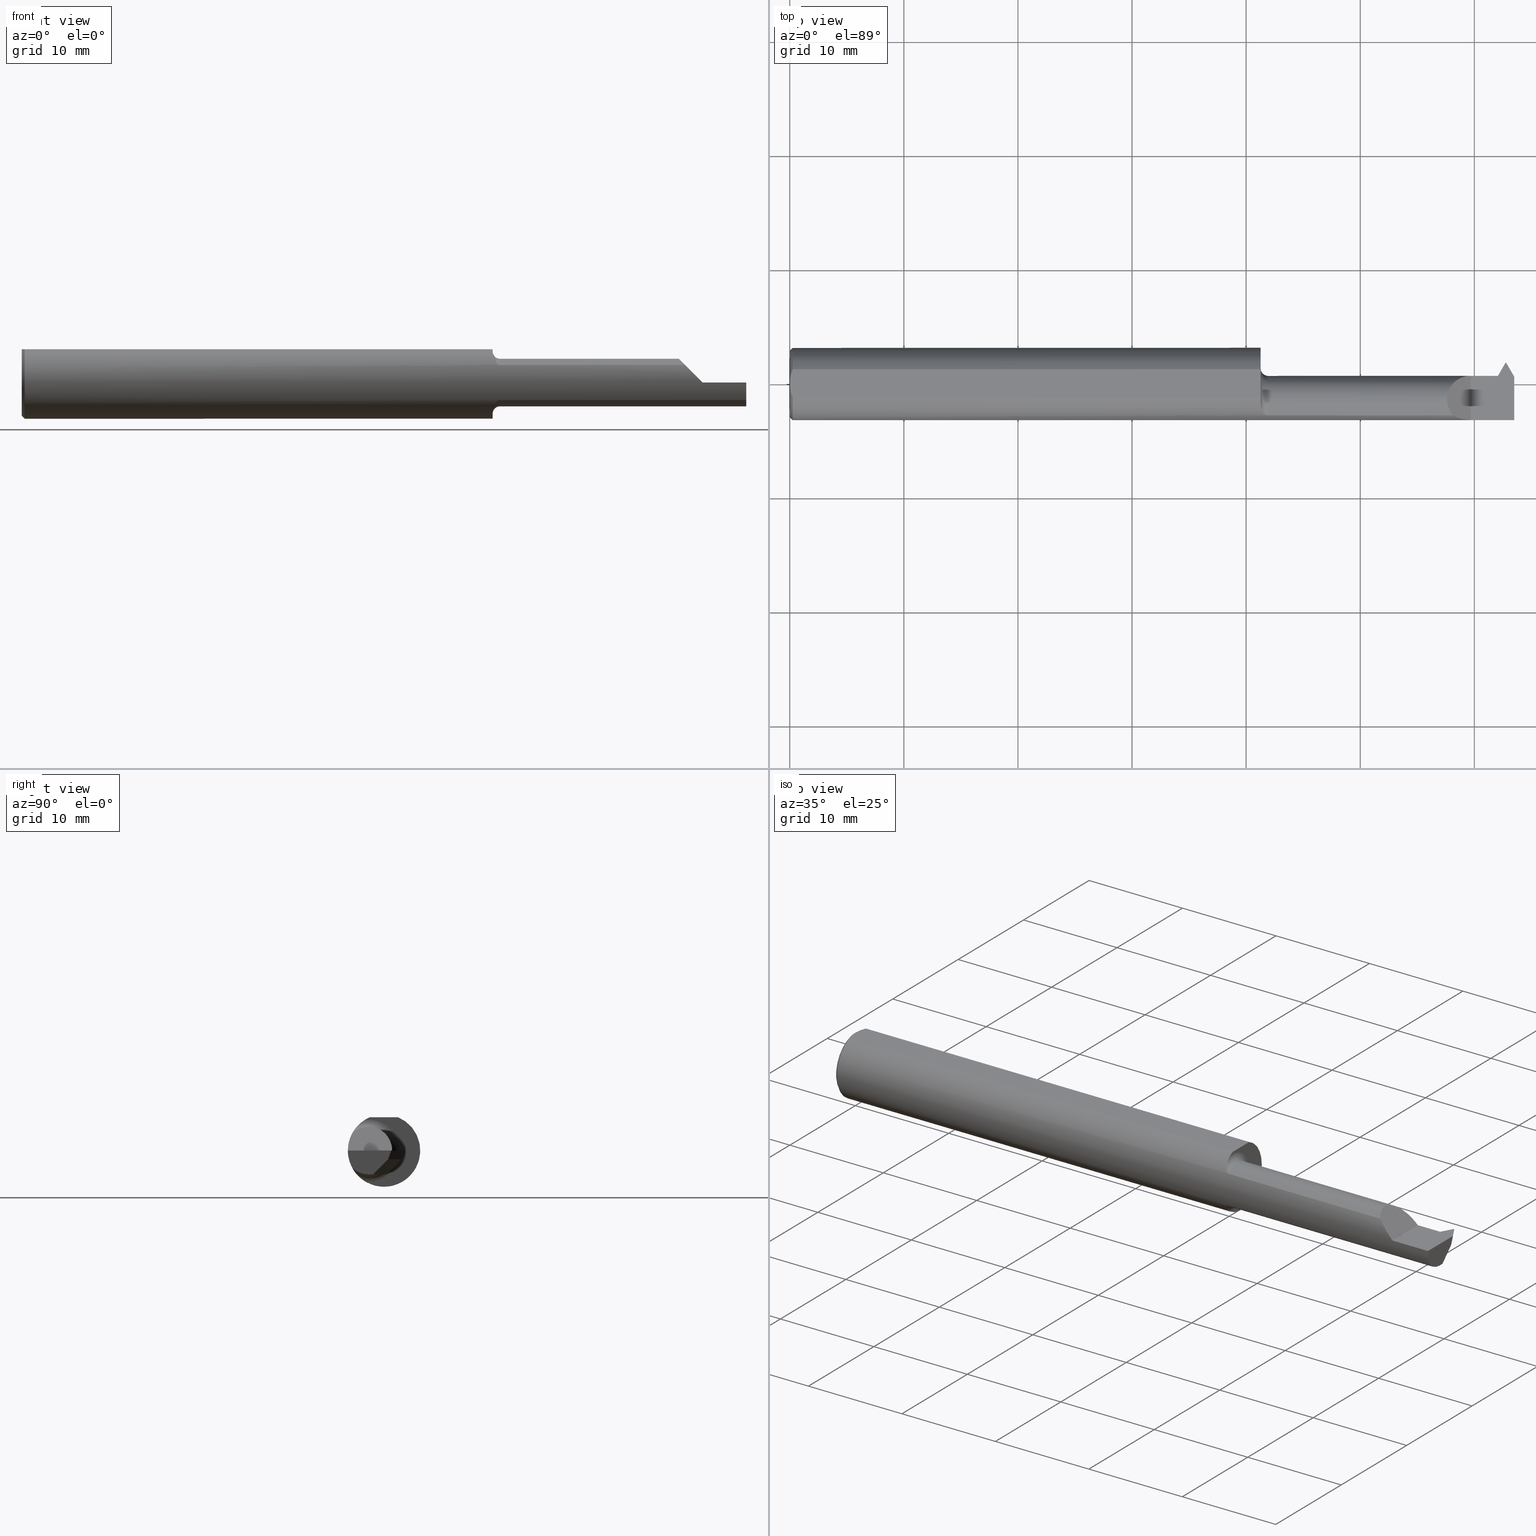
[diagram: canonical four-view strip — front | top / right | iso, engineering-drawing reading convention]
A machine part, canonical four-view strip (front | top / right | iso — engineering-drawing reading convention). The complete STEP part file that produces these views, byte-faithful:
ISO-10303-21;
HEADER;
FILE_DESCRIPTION (( 'STEP AP203' ),
    '1' );
FILE_NAME ('230241-TT200800.STEP',
    '2025-04-24T22:36:25',
    ( '' ),
    ( '' ),
    'SwSTEP 2.0',
    'SolidWorks 2024',
    '' );
FILE_SCHEMA (( 'CONFIG_CONTROL_DESIGN' ));
ENDSEC;

DATA;
#1 = ORIENTED_EDGE ( 'NONE', *, *, #278, .F. ) ;
#2 = CARTESIAN_POINT ( 'NONE',  ( 1.625000000000000222, -0.05385000000000010612, 0.000000000000000000 ) ) ;
#3 = CARTESIAN_POINT ( 'NONE',  ( 2.452452630173280745, -0.02103119801956336923, -0.07699899284797005750 ) ) ;
#4 = ORIENTED_EDGE ( 'NONE', *, *, #492, .T. ) ;
#5 = EDGE_CURVE ( 'NONE', #692, #199, #251, .T. ) ;
#6 = FACE_OUTER_BOUND ( 'NONE', #324, .T. ) ;
#7 = DIRECTION ( 'NONE',  ( 0.1779435454738421407, 0.000000000000000000, 0.9840406976462907629 ) ) ;
#8 = ORIENTED_EDGE ( 'NONE', *, *, #698, .T. ) ;
#9 = PRODUCT_RELATED_PRODUCT_CATEGORY ( 'detail', '', ( #388 ) ) ;
#10 = DIRECTION ( 'NONE',  ( -0.4999999999999897859, 0.000000000000000000, 0.8660254037844445918 ) ) ;
#11 = LINE ( 'NONE', #623, #122 ) ;
#12 = AXIS2_PLACEMENT_3D ( 'NONE', #366, #197, #244 ) ;
#13 = VECTOR ( 'NONE', #85, 39.37007874015748143 ) ;
#14 = ORIENTED_EDGE ( 'NONE', *, *, #475, .F. ) ;
#15 = CARTESIAN_POINT ( 'NONE',  ( 2.451234871023850292, -0.007219850294038227673, -0.06745093875106218662 ) ) ;
#16 = CARTESIAN_POINT ( 'NONE',  ( 0.01000000000000014939, 0.04895916665957469188, 0.1148499999999999521 ) ) ;
#17 = ORIENTED_EDGE ( 'NONE', *, *, #615, .F. ) ;
#18 = VECTOR ( 'NONE', #419, 39.37007874015748143 ) ;
#19 = CARTESIAN_POINT ( 'NONE',  ( 2.452918392213564669, -0.01885296730677211638, -0.08200000000000011446 ) ) ;
#20 = LINE ( 'NONE', #448, #386 ) ;
#21 = ORIENTED_EDGE ( 'NONE', *, *, #359, .F. ) ;
#22 = EDGE_CURVE ( 'NONE', #464, #62, #31, .T. ) ;
#23 = CARTESIAN_POINT ( 'NONE',  ( 2.446901295964723833, 0.02272511627620293906, -0.02999999999999999889 ) ) ;
#24 = VECTOR ( 'NONE', #424, 39.37007874015748854 ) ;
#25 =( BOUNDED_CURVE ( )  B_SPLINE_CURVE ( 3, ( #297, #415, #347, #596 ),
 .UNSPECIFIED., .F., .T. ) 
 B_SPLINE_CURVE_WITH_KNOTS ( ( 4, 4 ),
 ( 3.543943011109390362, 3.546790974617834546 ),
 .UNSPECIFIED. ) 
 CURVE ( )  GEOMETRIC_REPRESENTATION_ITEM ( )  RATIONAL_B_SPLINE_CURVE ( ( 1.000000000000000000, 0.9999993240921020154, 0.9999993240921020154, 1.000000000000000000 ) ) 
 REPRESENTATION_ITEM ( '' )  );
#26 = PLANE ( 'NONE',  #288 ) ;
#27 = CARTESIAN_POINT ( 'NONE',  ( 1.625000000000000222, 0.000000000000000000, 0.000000000000000000 ) ) ;
#28 = EDGE_CURVE ( 'NONE', #51, #748, #59, .T. ) ;
#29 =( CONVERSION_BASED_UNIT ( 'INCH', #639 ) LENGTH_UNIT ( ) NAMED_UNIT ( #107 ) );
#30 = DIRECTION ( 'NONE',  ( 0.9947640934854949935, 0.01818544582510317476, 0.1005668328631451336 ) ) ;
#31 = B_SPLINE_CURVE_WITH_KNOTS ( 'NONE', 3,
 ( #235, #283, #782, #660, #123, #355, #490, #233, #358, #186, #727, #182 ),
 .UNSPECIFIED., .F., .F.,
 ( 4, 2, 2, 2, 2, 4 ),
 ( 1.963893730206868762E-07, 0.0002326901895015452302, 0.0004651839896300697676, 0.0009301715898871187882, 0.001395159190144167755, 0.001860146790401217371 ),
 .UNSPECIFIED. ) ;
#32 = LINE ( 'NONE', #645, #420 ) ;
#33 = CC_DESIGN_PERSON_AND_ORGANIZATION_ASSIGNMENT ( #180, #543, ( #650 ) ) ;
#34 = CARTESIAN_POINT ( 'NONE',  ( 1.638167052038310478, -0.1047260336402098813, 0.06802262465471402286 ) ) ;
#35 = VERTEX_POINT ( 'NONE', #656 ) ;
#36 = APPROVAL_ROLE ( '' ) ;
#37 = FACE_OUTER_BOUND ( 'NONE', #236, .T. ) ;
#38 = ORIENTED_EDGE ( 'NONE', *, *, #737, .F. ) ;
#39 = ORIENTED_EDGE ( 'NONE', *, *, #533, .T. ) ;
#40 = DIRECTION ( 'NONE',  ( 0.000000000000000000, -0.7071067811865474617, -0.7071067811865474617 ) ) ;
#41 = DIRECTION ( 'NONE',  ( 0.4999999999999948375, -0.8660254037844417052, 0.000000000000000000 ) ) ;
#42 = VECTOR ( 'NONE', #629, 39.37007874015748143 ) ;
#43 = ORIENTED_EDGE ( 'NONE', *, *, #475, .T. ) ;
#44 = APPROVAL_DATE_TIME ( #465, #627 ) ;
#45 = CARTESIAN_POINT ( 'NONE',  ( 1.625000000000000222, -0.06535139275766012334, 0.1063800637555460948 ) ) ;
#46 = ADVANCED_FACE ( 'NONE', ( #291 ), #486, .F. ) ;
#47 = DIRECTION ( 'NONE',  ( 1.000000000000000000, 5.250126673606354578E-17, 0.000000000000000000 ) ) ;
#48 = EDGE_LOOP ( 'NONE', ( #131, #340, #298, #546 ) ) ;
#49 = VECTOR ( 'NONE', #673, 39.37007874015748854 ) ;
#50 = CARTESIAN_POINT ( 'NONE',  ( 2.469749999999999890, 0.07314999999999999281, 0.000000000000000000 ) ) ;
#51 = VERTEX_POINT ( 'NONE', #117 ) ;
#52 = VERTEX_POINT ( 'NONE', #479 ) ;
#53 = APPROVAL_DATE_TIME ( #423, #407 ) ;
#54 = DIRECTION ( 'NONE',  ( 1.000000000000000000, 0.000000000000000000, 0.000000000000000000 ) ) ;
#55 = AXIS2_PLACEMENT_3D ( 'NONE', #239, #425, #565 ) ;
#56 = EDGE_CURVE ( 'NONE', #240, #464, #731, .T. ) ;
#57 = ORIENTED_EDGE ( 'NONE', *, *, #132, .F. ) ;
#58 = CARTESIAN_POINT ( 'NONE',  ( -7.933430635897561254E-17, -0.008414813278457880172, 0.1148499999999999660 ) ) ;
#59 = LINE ( 'NONE', #473, #643 ) ;
#60 = EDGE_CURVE ( 'NONE', #124, #648, #469, .T. ) ;
#61 =( BOUNDED_CURVE ( )  B_SPLINE_CURVE ( 3, ( #545, #601, #541, #177 ),
 .UNSPECIFIED., .F., .T. ) 
 B_SPLINE_CURVE_WITH_KNOTS ( ( 4, 4 ),
 ( 4.508237422836256947, 4.533492732055270480 ),
 .UNSPECIFIED. ) 
 CURVE ( )  GEOMETRIC_REPRESENTATION_ITEM ( )  RATIONAL_B_SPLINE_CURVE ( ( 1.000000000000000000, 0.9999468481526490038, 0.9999468481526490038, 1.000000000000000000 ) ) 
 REPRESENTATION_ITEM ( '' )  );
#62 = VERTEX_POINT ( 'NONE', #106 ) ;
#63 = CYLINDRICAL_SURFACE ( 'NONE', #586, 0.1248500000000000026 ) ;
#64 = CIRCLE ( 'NONE', #100, 0.1248500000000000026 ) ;
#65 = FACE_OUTER_BOUND ( 'NONE', #733, .T. ) ;
#66 = EDGE_CURVE ( 'NONE', #528, #555, #25, .T. ) ;
#67 = ORIENTED_EDGE ( 'NONE', *, *, #615, .T. ) ;
#68 = DIRECTION ( 'NONE',  ( 1.000000000000000000, 0.000000000000000000, 0.000000000000000000 ) ) ;
#69 = CARTESIAN_POINT ( 'NONE',  ( 0.000000000000000000, -0.04895916665957469188, 0.1148499999999999521 ) ) ;
#70 = APPROVAL ( #788, 'UNSPECIFIED' ) ;
#71 = VERTEX_POINT ( 'NONE', #549 ) ;
#72 = DIRECTION ( 'NONE',  ( -1.224646799147352961E-16, 0.000000000000000000, -1.000000000000000000 ) ) ;
#73 = FACE_OUTER_BOUND ( 'NONE', #657, .T. ) ;
#74 = ORIENTED_EDGE ( 'NONE', *, *, #28, .F. ) ;
#75 = DIRECTION ( 'NONE',  ( 0.000000000000000000, -1.000000000000000000, 0.000000000000000000 ) ) ;
#76 = DIRECTION ( 'NONE',  ( 0.000000000000000000, 0.000000000000000000, 1.000000000000000000 ) ) ;
#77 = VECTOR ( 'NONE', #580, 39.37007874015748143 ) ;
#78 = VECTOR ( 'NONE', #334, 39.37007874015748854 ) ;
#79 = ORIENTED_EDGE ( 'NONE', *, *, #655, .F. ) ;
#80 = CARTESIAN_POINT ( 'NONE',  ( 2.433030381068565173, 0.02814999999999999447, 0.000000000000000000 ) ) ;
#81 = DIRECTION ( 'NONE',  ( 1.000000000000000000, 0.000000000000000000, 0.000000000000000000 ) ) ;
#82 = ORIENTED_EDGE ( 'NONE', *, *, #567, .T. ) ;
#83 = CARTESIAN_POINT ( 'NONE',  ( 2.453558178717973437, -0.05385000000000006448, -0.08200000000000007283 ) ) ;
#84 = AXIS2_PLACEMENT_3D ( 'NONE', #202, #683, #245 ) ;
#85 = DIRECTION ( 'NONE',  ( 0.7071067811865530128, 0.000000000000000000, -0.7071067811865421326 ) ) ;
#86 = ORIENTED_EDGE ( 'NONE', *, *, #426, .T. ) ;
#87 = CARTESIAN_POINT ( 'NONE',  ( 2.443769237886467049, 0.02814999999999999100, 0.000000000000000000 ) ) ;
#88 = DIRECTION ( 'NONE',  ( 0.1005834662396479090, 0.000000000000000000, -0.9949286237309776793 ) ) ;
#89 = APPROVAL_PERSON_ORGANIZATION ( #720, #70, #159 ) ;
#90 = EDGE_CURVE ( 'NONE', #748, #157, #126, .T. ) ;
#91 = CARTESIAN_POINT ( 'NONE',  ( 2.472290033225402972, 0.01023089297201461301, -0.08200000000000007283 ) ) ;
#92 = CARTESIAN_POINT ( 'NONE',  ( 1.650000000000000133, -0.1092232590529245845, 0.06047976671464373039 ) ) ;
#93 = VECTOR ( 'NONE', #47, 39.37007874015748143 ) ;
#94 = DIRECTION ( 'NONE',  ( 0.000000000000000000, 0.3401001459858907228, 0.9403892229818331394 ) ) ;
#95 = DIRECTION ( 'NONE',  ( -5.250126673606354578E-17, 1.000000000000000000, 0.000000000000000000 ) ) ;
#96 = CARTESIAN_POINT ( 'NONE',  ( 2.451234871023850292, -0.007219850294038227673, -0.06745093875106218662 ) ) ;
#97 = DIRECTION ( 'NONE',  ( 0.000000000000000000, 0.000000000000000000, -1.000000000000000000 ) ) ;
#98 = ORIENTED_EDGE ( 'NONE', *, *, #191, .F. ) ;
#99 = VECTOR ( 'NONE', #568, 39.37007874015748143 ) ;
#100 = AXIS2_PLACEMENT_3D ( 'NONE', #27, #517, #526 ) ;
#101 = ORIENTED_EDGE ( 'NONE', *, *, #113, .F. ) ;
#102 = CARTESIAN_POINT ( 'NONE',  ( 1.650000000000000133, -0.1092232590529245845, -0.06047976671464375814 ) ) ;
#103 = ORIENTED_EDGE ( 'NONE', *, *, #531, .F. ) ;
#104 = EDGE_CURVE ( 'NONE', #528, #369, #61, .T. ) ;
#105 = CARTESIAN_POINT ( 'NONE',  ( 2.308130552538913527, -0.1195282781184591331, 0.04186944746108606924 ) ) ;
#106 = CARTESIAN_POINT ( 'NONE',  ( 1.625000000000000222, -0.06535139275766012334, -0.1063800637555460948 ) ) ;
#107 = DIMENSIONAL_EXPONENTS ( 1.000000000000000000, 0.000000000000000000, 0.000000000000000000, 0.000000000000000000, 0.000000000000000000, 0.000000000000000000, 0.000000000000000000 ) ;
#108 = ORIENTED_EDGE ( 'NONE', *, *, #257, .T. ) ;
#109 = APPROVAL_STATUS ( 'not_yet_approved' ) ;
#110 = AXIS2_PLACEMENT_3D ( 'NONE', #437, #617, #76 ) ;
#111 = LINE ( 'NONE', #176, #550 ) ;
#112 = CARTESIAN_POINT ( 'NONE',  ( 2.433030381068565173, 0.02814999999999999447, 0.000000000000000000 ) ) ;
#113 = EDGE_CURVE ( 'NONE', #35, #52, #351, .T. ) ;
#114 = CONICAL_SURFACE ( 'NONE', #638, 0.1148500000000000076, 0.7853981633974407295 ) ;
#115 = CARTESIAN_POINT ( 'NONE',  ( 2.328727073528534586, -0.1248500000000000026, 0.02127292647146517696 ) ) ;
#116 = VECTOR ( 'NONE', #274, 39.37007874015748143 ) ;
#117 = CARTESIAN_POINT ( 'NONE',  ( 2.443769237886467049, 0.02814999999999999100, 0.000000000000000000 ) ) ;
#118 = EDGE_CURVE ( 'NONE', #555, #630, #440, .T. ) ;
#119 = ORIENTED_EDGE ( 'NONE', *, *, #737, .T. ) ;
#120 = CALENDAR_DATE ( 2025, 24, 4 ) ;
#121 = LINE ( 'NONE', #349, #447 ) ;
#122 = VECTOR ( 'NONE', #195, 39.37007874015748143 ) ;
#123 = CARTESIAN_POINT ( 'NONE',  ( 1.638158879394964629, -0.1047178258151589963, -0.06803468955078927072 ) ) ;
#124 = VERTEX_POINT ( 'NONE', #690 ) ;
#125 = DIRECTION ( 'NONE',  ( 0.000000000000000000, 0.000000000000000000, 1.000000000000000000 ) ) ;
#126 = LINE ( 'NONE', #429, #93 ) ;
#127 = EDGE_LOOP ( 'NONE', ( #8, #609 ) ) ;
#128 = DIRECTION ( 'NONE',  ( -1.000000000000000000, -0.000000000000000000, -0.000000000000000000 ) ) ;
#129 = VECTOR ( 'NONE', #234, 39.37007874015748143 ) ;
#130 = CARTESIAN_POINT ( 'NONE',  ( 1.650000000000000133, -0.05385000000000010612, 0.000000000000000000 ) ) ;
#131 = ORIENTED_EDGE ( 'NONE', *, *, #301, .F. ) ;
#132 = EDGE_CURVE ( 'NONE', #35, #442, #316, .T. ) ;
#133 = CARTESIAN_POINT ( 'NONE',  ( 1.625000000000000222, -0.04895916665957479597, 0.1148499999999999521 ) ) ;
#134 = ADVANCED_FACE ( 'NONE', ( #65 ), #433, .F. ) ;
#135 = ORIENTED_EDGE ( 'NONE', *, *, #284, .T. ) ;
#136 = CARTESIAN_POINT ( 'NONE',  ( 2.446901295964723833, 0.02272511627620293906, -0.02999999999999999889 ) ) ;
#137 = CARTESIAN_POINT ( 'NONE',  ( 2.443769237886467049, 0.02814999999999999100, 0.000000000000000000 ) ) ;
#138 = EDGE_LOOP ( 'NONE', ( #774, #208 ) ) ;
#139 = DIRECTION ( 'NONE',  ( -0.01827811026638627781, 0.9998329413882549588, 0.000000000000000000 ) ) ;
#140 = CARTESIAN_POINT ( 'NONE',  ( 2.500000000000000000, 0.02508559008996252837, 0.000000000000000000 ) ) ;
#141 = VECTOR ( 'NONE', #318, 39.37007874015748854 ) ;
#142 = ADVANCED_FACE ( 'NONE', ( #73 ), #262, .T. ) ;
#143 = ORIENTED_EDGE ( 'NONE', *, *, #393, .T. ) ;
#144 = CARTESIAN_POINT ( 'NONE',  ( 2.450332701925785450, -0.01228205133668518016, -0.07095053707884105276 ) ) ;
#145 = CARTESIAN_POINT ( 'NONE',  ( 1.644142011591955610, -0.1083236330372056855, 0.06211474020592992057 ) ) ;
#146 = ORIENTED_EDGE ( 'NONE', *, *, #478, .F. ) ;
#147 = LINE ( 'NONE', #330, #299 ) ;
#148 = CARTESIAN_POINT ( 'NONE',  ( 2.454384911711299466, -2.391462833681094136, 0.3325315713287219088 ) ) ;
#149 = PLANE ( 'NONE',  #563 ) ;
#150 = CC_DESIGN_DATE_AND_TIME_ASSIGNMENT ( #277, #771, ( #754 ) ) ;
#151 = AXIS2_PLACEMENT_3D ( 'NONE', #310, #560, #10 ) ;
#152 = LINE ( 'NONE', #322, #765 ) ;
#153 = CARTESIAN_POINT ( 'NONE',  ( 2.500000000000000000, 0.000000000000000000, 0.000000000000000000 ) ) ;
#154 = EDGE_LOOP ( 'NONE', ( #57, #695, #674, #566 ) ) ;
#155 = DIRECTION ( 'NONE',  ( 1.000000000000000000, -0.000000000000000000, -0.000000000000000000 ) ) ;
#156 = LINE ( 'NONE', #279, #78 ) ;
#157 = VERTEX_POINT ( 'NONE', #503 ) ;
#158 = VERTEX_POINT ( 'NONE', #557 ) ;
#159 = APPROVAL_ROLE ( '' ) ;
#160 = CARTESIAN_POINT ( 'NONE',  ( 2.433030381068565173, 0.02814999999999999447, -8.173927656065597549E-35 ) ) ;
#161 = ORIENTED_EDGE ( 'NONE', *, *, #327, .F. ) ;
#162 = EDGE_CURVE ( 'NONE', #467, #199, #11, .T. ) ;
#163 = AXIS2_PLACEMENT_3D ( 'NONE', #651, #357, #595 ) ;
#164 = ORIENTED_EDGE ( 'NONE', *, *, #702, .F. ) ;
#165 = CARTESIAN_POINT ( 'NONE',  ( 0.000000000000000000, 0.000000000000000000, 0.000000000000000000 ) ) ;
#166 = CARTESIAN_POINT ( 'NONE',  ( 0.01000000000000014939, -0.04895916665957469188, 0.1148499999999999521 ) ) ;
#167 = EDGE_CURVE ( 'NONE', #536, #621, #687, .T. ) ;
#168 = DIRECTION ( 'NONE',  ( 0.4999999999999963918, 0.8660254037844405950, -0.000000000000000000 ) ) ;
#169 = ORIENTED_EDGE ( 'NONE', *, *, #167, .T. ) ;
#170 = CALENDAR_DATE ( 2025, 24, 4 ) ;
#171 = CARTESIAN_POINT ( 'NONE',  ( 2.472290033225403416, 0.06223089297200649211, -0.03000000000000763514 ) ) ;
#172 = ADVANCED_FACE ( 'NONE', ( #753 ), #569, .F. ) ;
#173 = CARTESIAN_POINT ( 'NONE',  ( 2.431252431409448800, 0.02815000000000000835, -0.009832190419034481793 ) ) ;
#174 = EDGE_LOOP ( 'NONE', ( #354, #675, #169, #562, #242, #305, #380, #775 ) ) ;
#175 = DATE_AND_TIME ( #525, #703 ) ;
#176 = CARTESIAN_POINT ( 'NONE',  ( 2.443769237886467049, 0.02814999999999999100, 0.000000000000000000 ) ) ;
#177 = CARTESIAN_POINT ( 'NONE',  ( 2.446767348830406696, 0.02295711951836949122, -0.02871700526327666467 ) ) ;
#178 = ORIENTED_EDGE ( 'NONE', *, *, #60, .F. ) ;
#179 = AXIS2_PLACEMENT_3D ( 'NONE', #87, #210, #762 ) ;
#180 = PERSON_AND_ORGANIZATION ( #579, #217 ) ;
#181 = DIRECTION ( 'NONE',  ( 0.000000000000000000, 1.000000000000000000, 0.000000000000000000 ) ) ;
#182 = CARTESIAN_POINT ( 'NONE',  ( 1.625000000000000222, -0.06535139275766012334, -0.1063800637555460948 ) ) ;
#183 = ORIENTED_EDGE ( 'NONE', *, *, #22, .T. ) ;
#184 = EDGE_CURVE ( 'NONE', #745, #715, #20, .T. ) ;
#185 = CARTESIAN_POINT ( 'NONE',  ( 1.650000000000000133, -0.05385000000000010612, 0.000000000000000000 ) ) ;
#186 = CARTESIAN_POINT ( 'NONE',  ( 1.625408339284914794, -0.07550530485030243488, -0.09961131850206345062 ) ) ;
#187 = ORIENTED_EDGE ( 'NONE', *, *, #104, .F. ) ;
#188 = CC_DESIGN_PERSON_AND_ORGANIZATION_ASSIGNMENT ( #401, #534, ( #388 ) ) ;
#189 = DIRECTION ( 'NONE',  ( -0.4999999999999966693, 0.000000000000000000, -0.8660254037844404840 ) ) ;
#190 = CARTESIAN_POINT ( 'NONE',  ( 2.350000000000000089, 0.02814999999999999100, 1.071565949253933286E-16 ) ) ;
#191 = EDGE_CURVE ( 'NONE', #240, #634, #699, .T. ) ;
#192 = ORIENTED_EDGE ( 'NONE', *, *, #510, .T. ) ;
#193 = CIRCLE ( 'NONE', #275, 0.08200000000000007283 ) ;
#194 = FACE_OUTER_BOUND ( 'NONE', #280, .T. ) ;
#195 = DIRECTION ( 'NONE',  ( -1.000000000000000000, -0.000000000000000000, -0.000000000000000000 ) ) ;
#196 = ORIENTED_EDGE ( 'NONE', *, *, #162, .F. ) ;
#197 = DIRECTION ( 'NONE',  ( 0.9947640934854949935, 0.01818544582510317476, 0.1005668328631451336 ) ) ;
#198 = CARTESIAN_POINT ( 'NONE',  ( 2.556730127439881262, -0.7361911692617114644, -0.9791454017888125971 ) ) ;
#199 = VERTEX_POINT ( 'NONE', #16 ) ;
#200 = CARTESIAN_POINT ( 'NONE',  ( 1.650000000000000133, -0.1092232590529245845, 0.06047976671464373039 ) ) ;
#201 = ADVANCED_FACE ( 'NONE', ( #694 ), #747, .F. ) ;
#202 = CARTESIAN_POINT ( 'NONE',  ( 0.000000000000000000, 0.000000000000000000, 0.000000000000000000 ) ) ;
#203 = CC_DESIGN_PERSON_AND_ORGANIZATION_ASSIGNMENT ( #348, #662, ( #650 ) ) ;
#204 = ORIENTED_EDGE ( 'NONE', *, *, #492, .F. ) ;
#205 = FACE_OUTER_BOUND ( 'NONE', #48, .T. ) ;
#206 = APPROVAL_PERSON_ORGANIZATION ( #594, #627, #538 ) ;
#207 = CIRCLE ( 'NONE', #339, 0.1248500000000000026 ) ;
#208 = ORIENTED_EDGE ( 'NONE', *, *, #118, .F. ) ;
#209 = EDGE_CURVE ( 'NONE', #470, #735, #605, .T. ) ;
#210 = DIRECTION ( 'NONE',  ( -3.911393996489536343E-16, -0.9840406976462907629, 0.1779435454738421407 ) ) ;
#211 = PLANE ( 'NONE',  #315 ) ;
#212 = CARTESIAN_POINT ( 'NONE',  ( 0.01000000000000014939, 0.000000000000000000, -0.1248500000000000026 ) ) ;
#213 = PRODUCT_DEFINITION ( 'UNKNOWN', '', #650, #375 ) ;
#214 = CARTESIAN_POINT ( 'NONE',  ( 1.626996939049467628, -0.08458882217984108054, 0.09202120527030370478 ) ) ;
#215 = CARTESIAN_POINT ( 'NONE',  ( 2.350000000000000089, -0.2500000000000000555, 1.836970198721029441E-17 ) ) ;
#216 = DIRECTION ( 'NONE',  ( -0.1021978390768673861, 0.1770118497048815409, 0.9788883525469465052 ) ) ;
#217 = ORGANIZATION ( 'UNSPECIFIED', 'UNSPECIFIED', '' ) ;
#218 = VECTOR ( 'NONE', #570, 39.37007874015748143 ) ;
#219 = DIRECTION ( 'NONE',  ( 0.000000000000000000, -1.000000000000000000, 0.000000000000000000 ) ) ;
#220 = VERTEX_POINT ( 'NONE', #140 ) ;
#221 = AXIS2_PLACEMENT_3D ( 'NONE', #665, #294, #41 ) ;
#222 = ORIENTED_EDGE ( 'NONE', *, *, #301, .T. ) ;
#223 = CARTESIAN_POINT ( 'NONE',  ( 1.625400300771548068, -0.07542150831050739579, 0.09967330204894490897 ) ) ;
#224 = VERTEX_POINT ( 'NONE', #311 ) ;
#225 =( BOUNDED_CURVE ( )  B_SPLINE_CURVE ( 3, ( #620, #561, #3, #255 ),
 .UNSPECIFIED., .F., .F. ) 
 B_SPLINE_CURVE_WITH_KNOTS ( ( 4, 4 ),
 ( 3.320488901919211866, 3.925365243094500300 ),
 .UNSPECIFIED. ) 
 CURVE ( )  GEOMETRIC_REPRESENTATION_ITEM ( )  RATIONAL_B_SPLINE_CURVE ( ( 1.000000000000000000, 0.9697420810547336956, 0.9697420810547336956, 1.000000000000000000 ) ) 
 REPRESENTATION_ITEM ( '' )  );
#226 = COORDINATED_UNIVERSAL_TIME_OFFSET ( 8, 0, .BEHIND. ) ;
#227 = CARTESIAN_POINT ( 'NONE',  ( 0.004414493321357296045, -0.03313351293251454166, 0.1148499999999999660 ) ) ;
#228 = CARTESIAN_POINT ( 'NONE',  ( 0.000000000000000000, 0.000000000000000000, 0.1148499999999999521 ) ) ;
#229 = VECTOR ( 'NONE', #346, 39.37007874015748143 ) ;
#230 = SECURITY_CLASSIFICATION_LEVEL ( 'unclassified' ) ;
#231 = EDGE_CURVE ( 'NONE', #648, #51, #363, .T. ) ;
#232 = DIRECTION ( 'NONE',  ( 0.4999999999999962808, 0.8660254037844405950, 0.000000000000000000 ) ) ;
#233 = CARTESIAN_POINT ( 'NONE',  ( 1.628216217036756674, -0.08893970397226953761, -0.08781254252886017131 ) ) ;
#234 = DIRECTION ( 'NONE',  ( 4.371539873031730566E-15, 0.7071067811865436870, 0.7071067811865513475 ) ) ;
#235 = CARTESIAN_POINT ( 'NONE',  ( 1.650000000000000133, -0.1092232590529245845, -0.06047976671464375814 ) ) ;
#236 = EDGE_LOOP ( 'NONE', ( #647, #398, #711 ) ) ;
#237 = DIRECTION ( 'NONE',  ( 1.000000000000000000, 0.000000000000000000, 0.000000000000000000 ) ) ;
#238 = CARTESIAN_POINT ( 'NONE',  ( 2.472290033225404748, 0.06223089297201414571, -0.02999999999999995379 ) ) ;
#239 = CARTESIAN_POINT ( 'NONE',  ( 2.446901295964723833, -0.05385000000000006448, 0.000000000000000000 ) ) ;
#240 = VERTEX_POINT ( 'NONE', #371 ) ;
#241 = CARTESIAN_POINT ( 'NONE',  ( 1.625000000000000222, 0.000000000000000000, 0.000000000000000000 ) ) ;
#242 = ORIENTED_EDGE ( 'NONE', *, *, #640, .F. ) ;
#243 = ORIENTED_EDGE ( 'NONE', *, *, #254, .T. ) ;
#244 = DIRECTION ( 'NONE',  ( 0.1005834662396479090, 0.000000000000000000, -0.9949286237309776793 ) ) ;
#245 = DIRECTION ( 'NONE',  ( 0.000000000000000000, 0.000000000000000000, -1.000000000000000000 ) ) ;
#246 = EDGE_CURVE ( 'NONE', #427, #551, #494, .T. ) ;
#247 = ORIENTED_EDGE ( 'NONE', *, *, #515, .F. ) ;
#248 = FACE_OUTER_BOUND ( 'NONE', #593, .T. ) ;
#249 = DIRECTION ( 'NONE',  ( 0.000000000000000000, 0.000000000000000000, 1.000000000000000000 ) ) ;
#250 = ORIENTED_EDGE ( 'NONE', *, *, #484, .T. ) ;
#251 = B_SPLINE_CURVE_WITH_KNOTS ( 'NONE', 3,
 ( #228, #532, #787, #778 ),
 .UNSPECIFIED., .F., .F.,
 ( 4, 4 ),
 ( 0.002328709147988536343, 0.003597800360742826626 ),
 .UNSPECIFIED. ) ;
#252 = CC_DESIGN_APPROVAL ( #627, ( #213 ) ) ;
#253 = CARTESIAN_POINT ( 'NONE',  ( 2.500000000000000000, -0.1248500000000000026, 0.000000000000000000 ) ) ;
#254 = EDGE_CURVE ( 'NONE', #369, #124, #319, .T. ) ;
#255 = CARTESIAN_POINT ( 'NONE',  ( 2.451234871023850292, -0.007219850294038227673, -0.06745093875106218662 ) ) ;
#256 = ORIENTED_EDGE ( 'NONE', *, *, #231, .F. ) ;
#257 = EDGE_CURVE ( 'NONE', #685, #621, #225, .T. ) ;
#258 = CARTESIAN_POINT ( 'NONE',  ( 1.625000000000000222, 0.1248499999999999471, 0.1148499999999999521 ) ) ;
#259 = CARTESIAN_POINT ( 'NONE',  ( 2.266883813472912124, 0.02814999999999999100, 0.08311618652708725741 ) ) ;
#260 = EDGE_LOOP ( 'NONE', ( #488, #79, #751, #670 ) ) ;
#261 = LINE ( 'NONE', #395, #691 ) ;
#262 = PLANE ( 'NONE',  #773 ) ;
#263 = CC_DESIGN_APPROVAL ( #70, ( #754 ) ) ;
#264 = ORIENTED_EDGE ( 'NONE', *, *, #387, .F. ) ;
#265 = CARTESIAN_POINT ( 'NONE',  ( 0.000000000000000000, 0.000000000000000000, 0.000000000000000000 ) ) ;
#266 = DIRECTION ( 'NONE',  ( 0.000000000000000000, 0.000000000000000000, -1.000000000000000000 ) ) ;
#267 = VECTOR ( 'NONE', #139, 39.37007874015748854 ) ;
#268 = DIRECTION ( 'NONE',  ( 0.000000000000000000, 0.000000000000000000, 1.000000000000000000 ) ) ;
#269 = LINE ( 'NONE', #462, #523 ) ;
#270 = EDGE_CURVE ( 'NONE', #369, #51, #307, .T. ) ;
#271 = DIRECTION ( 'NONE',  ( 0.4999999999999966693, -0.8660254037844404840, 0.000000000000000000 ) ) ;
#272 = ADVANCED_FACE ( 'NONE', ( #328 ), #211, .F. ) ;
#273 = CARTESIAN_POINT ( 'NONE',  ( 1.625000000000000666, -0.07054241148902913594, 0.1031911175192887220 ) ) ;
#274 = DIRECTION ( 'NONE',  ( 1.000000000000000000, 5.250126673606354578E-17, 0.000000000000000000 ) ) ;
#275 = AXIS2_PLACEMENT_3D ( 'NONE', #185, #373, #616 ) ;
#276 = ORIENTED_EDGE ( 'NONE', *, *, #209, .F. ) ;
#277 = DATE_AND_TIME ( #603, #487 ) ;
#278 = EDGE_CURVE ( 'NONE', #52, #536, #390, .T. ) ;
#279 = CARTESIAN_POINT ( 'NONE',  ( 2.472246112513392990, 0.07421031632221902763, 0.002913195152776099431 ) ) ;
#280 = EDGE_LOOP ( 'NONE', ( #356, #74, #256, #460, #588, #572, #264, #146 ) ) ;
#281 = ORIENTED_EDGE ( 'NONE', *, *, #162, .T. ) ;
#282 = CARTESIAN_POINT ( 'NONE',  ( 2.289520233285355921, -0.1092232590529246122, 0.06047976671464368875 ) ) ;
#283 = CARTESIAN_POINT ( 'NONE',  ( 1.646893101175497476, -0.1092232590529246261, -0.06047976671464372345 ) ) ;
#284 = EDGE_CURVE ( 'NONE', #735, #648, #453, .T. ) ;
#285 = ORIENTED_EDGE ( 'NONE', *, *, #567, .F. ) ;
#286 = PERSON_AND_ORGANIZATION ( #579, #217 ) ;
#287 = CARTESIAN_POINT ( 'NONE',  ( 2.289520233285355921, -0.1092232590529246122, 0.06047976671464368875 ) ) ;
#288 = AXIS2_PLACEMENT_3D ( 'NONE', #215, #573, #512 ) ;
#289 = ORIENTED_EDGE ( 'NONE', *, *, #350, .F. ) ;
#290 = LINE ( 'NONE', #418, #652 ) ;
#291 = FACE_OUTER_BOUND ( 'NONE', #667, .T. ) ;
#292 = PERSON_AND_ORGANIZATION_ROLE ( 'classification_officer' ) ;
#293 = DIRECTION ( 'NONE',  ( 1.000000000000000000, 5.250126673606354578E-17, 0.000000000000000000 ) ) ;
#294 = DIRECTION ( 'NONE',  ( -0.8522042425194527038, -0.4920203488231402744, 0.1779435454738421962 ) ) ;
#295 = ORIENTED_EDGE ( 'NONE', *, *, #246, .T. ) ;
#296 = CARTESIAN_POINT ( 'NONE',  ( 0.000000000000000000, 0.000000000000000000, 0.1148499999999999521 ) ) ;
#297 = CARTESIAN_POINT ( 'NONE',  ( 2.446976212146491303, 0.02220744610134757491, -0.03064742880798617536 ) ) ;
#298 = ORIENTED_EDGE ( 'NONE', *, *, #5, .T. ) ;
#299 = VECTOR ( 'NONE', #155, 39.37007874015748143 ) ;
#300 = AXIS2_PLACEMENT_3D ( 'NONE', #604, #54, #777 ) ;
#301 = EDGE_CURVE ( 'NONE', #224, #784, #581, .T. ) ;
#302 = DIRECTION ( 'NONE',  ( -1.000000000000000000, 0.000000000000000000, 1.224646799147352961E-16 ) ) ;
#303 = DIRECTION ( 'NONE',  ( 1.000000000000000000, 0.000000000000000000, -0.000000000000000000 ) ) ;
#304 = ADVANCED_FACE ( 'NONE', ( #37 ), #149, .F. ) ;
#305 = ORIENTED_EDGE ( 'NONE', *, *, #66, .F. ) ;
#306 = PLANE ( 'NONE',  #12 ) ;
#307 = LINE ( 'NONE', #137, #459 ) ;
#308 = ORIENTED_EDGE ( 'NONE', *, *, #118, .T. ) ;
#309 = EDGE_CURVE ( 'NONE', #427, #784, #666, .T. ) ;
#310 = CARTESIAN_POINT ( 'NONE',  ( 2.446901295964723833, 0.02272511627620293906, -0.02999999999999999889 ) ) ;
#311 = CARTESIAN_POINT ( 'NONE',  ( 0.000000000000000000, 0.000000000000000000, -0.1148500000000000076 ) ) ;
#312 = EDGE_LOOP ( 'NONE', ( #770, #400, #108 ) ) ;
#313 = AXIS2_PLACEMENT_3D ( 'NONE', #749, #443, #689 ) ;
#314 = CARTESIAN_POINT ( 'NONE',  ( 0.000000000000000000, 0.000000000000000000, 0.000000000000000000 ) ) ;
#315 = AXIS2_PLACEMENT_3D ( 'NONE', #331, #385, #636 ) ;
#316 = LINE ( 'NONE', #507, #606 ) ;
#317 = EDGE_LOOP ( 'NONE', ( #343, #716, #672, #86, #524, #21, #795, #602, #706, #250, #196, #247, #364 ) ) ;
#318 = DIRECTION ( 'NONE',  ( -0.09000871797897590232, 0.6219594709070992433, 0.7778591435708280821 ) ) ;
#319 = LINE ( 'NONE', #677, #218 ) ;
#320 = ADVANCED_FACE ( 'NONE', ( #337 ), #578, .T. ) ;
#321 = ORIENTED_EDGE ( 'NONE', *, *, #531, .T. ) ;
#322 = CARTESIAN_POINT ( 'NONE',  ( 2.470999999999999197, 0.06446529606186629513, -0.02999999999999999889 ) ) ;
#323 = FACE_OUTER_BOUND ( 'NONE', #138, .T. ) ;
#324 = EDGE_LOOP ( 'NONE', ( #308, #404, #583, #610, #383, #710, #17, #589, #607, #135, #178, #344, #187, #361 ) ) ;
#325 = FACE_OUTER_BOUND ( 'NONE', #511, .T. ) ;
#326 = AXIS2_PLACEMENT_3D ( 'NONE', #314, #68, #436 ) ;
#327 = EDGE_CURVE ( 'NONE', #157, #442, #156, .T. ) ;
#328 = FACE_OUTER_BOUND ( 'NONE', #688, .T. ) ;
#329 = VECTOR ( 'NONE', #535, 39.37007874015748143 ) ;
#330 = CARTESIAN_POINT ( 'NONE',  ( -3.937007874019685528E-05, 0.01023089297201460433, -0.08200000000000007283 ) ) ;
#331 = CARTESIAN_POINT ( 'NONE',  ( -3.937007874019685528E-05, 0.06223089297201413878, -0.02999999999999999542 ) ) ;
#332 = VECTOR ( 'NONE', #499, 39.37007874015748854 ) ;
#333 =( NAMED_UNIT ( * ) PLANE_ANGLE_UNIT ( ) SI_UNIT ( $, .RADIAN. ) );
#334 = DIRECTION ( 'NONE',  ( 0.001253963230749836205, -0.3420198744252525569, -0.9396918819881070473 ) ) ;
#335 = EDGE_CURVE ( 'NONE', #634, #158, #269, .T. ) ;
#336 = DIRECTION ( 'NONE',  ( 0.000000000000000000, 0.000000000000000000, -1.000000000000000000 ) ) ;
#337 = FACE_OUTER_BOUND ( 'NONE', #260, .T. ) ;
#338 = VERTEX_POINT ( 'NONE', #582 ) ;
#339 = AXIS2_PLACEMENT_3D ( 'NONE', #544, #480, #659 ) ;
#340 = ORIENTED_EDGE ( 'NONE', *, *, #698, .F. ) ;
#341 = CARTESIAN_POINT ( 'NONE',  ( 1.625000000000000222, 0.04895916665957469188, 0.1148499999999999521 ) ) ;
#342 = EDGE_CURVE ( 'NONE', #551, #438, #64, .T. ) ;
#343 = ORIENTED_EDGE ( 'NONE', *, *, #56, .F. ) ;
#344 = ORIENTED_EDGE ( 'NONE', *, *, #254, .F. ) ;
#345 = APPLICATION_PROTOCOL_DEFINITION ( 'international standard', 'config_control_design', 1994, #732 ) ;
#346 = DIRECTION ( 'NONE',  ( 0.1751915364254245655, 0.1751915364254255647, 0.9688218882383892172 ) ) ;
#347 = CARTESIAN_POINT ( 'NONE',  ( 2.446926351246418996, 0.02226553178175602610, -0.03050298151534071994 ) ) ;
#348 = PERSON_AND_ORGANIZATION ( #579, #217 ) ;
#349 = CARTESIAN_POINT ( 'NONE',  ( 2.500000000000000000, 0.01423582264236719803, -0.02999999999999999889 ) ) ;
#350 = EDGE_CURVE ( 'NONE', #438, #62, #405, .T. ) ;
#351 = LINE ( 'NONE', #790, #18 ) ;
#352 = LOCAL_TIME ( 15, 36, 25.00000000000000000, #226 ) ;
#353 = VECTOR ( 'NONE', #458, 39.37007874015748143 ) ;
#354 = ORIENTED_EDGE ( 'NONE', *, *, #113, .T. ) ;
#355 = CARTESIAN_POINT ( 'NONE',  ( 1.633707043473947795, -0.1002470790731816441, -0.07460645910502533562 ) ) ;
#356 = ORIENTED_EDGE ( 'NONE', *, *, #90, .F. ) ;
#357 = DIRECTION ( 'NONE',  ( -1.000000000000000000, -0.000000000000000000, -0.000000000000000000 ) ) ;
#358 = CARTESIAN_POINT ( 'NONE',  ( 1.627023439373509905, -0.08470251846230689163, -0.09191816578021552719 ) ) ;
#359 = EDGE_CURVE ( 'NONE', #438, #626, #360, .T. ) ;
#360 = B_SPLINE_CURVE_WITH_KNOTS ( 'NONE', 3,
 ( #761, #273, #223, #214, #519, #758, #763, #34, #522, #145, #632, #92 ),
 .UNSPECIFIED., .F., .F.,
 ( 4, 2, 2, 2, 2, 4 ),
 ( 3.030490085918935252E-05, 0.0004889370798616827487, 0.0009475692588641760738, 0.001406201437866669507, 0.001635517527367915790, 0.001864833616869162073 ),
 .UNSPECIFIED. ) ;
#361 = ORIENTED_EDGE ( 'NONE', *, *, #66, .T. ) ;
#362 = LINE ( 'NONE', #258, #99 ) ;
#363 = LINE ( 'NONE', #553, #42 ) ;
#364 = ORIENTED_EDGE ( 'NONE', *, *, #22, .F. ) ;
#365 = VECTOR ( 'NONE', #786, 39.37007874015748143 ) ;
#366 = CARTESIAN_POINT ( 'NONE',  ( 2.454384911711299466, -2.391462833681094136, 0.3325315713287219088 ) ) ;
#367 = DIRECTION ( 'NONE',  ( -1.000000000000000000, -5.250126673606354578E-17, -0.000000000000000000 ) ) ;
#368 = ADVANCED_FACE ( 'NONE', ( #323 ), #574, .T. ) ;
#369 = VERTEX_POINT ( 'NONE', #454 ) ;
#370 = FACE_OUTER_BOUND ( 'NONE', #394, .T. ) ;
#371 = CARTESIAN_POINT ( 'NONE',  ( 2.500000000000000000, -0.1092232590529245845, -0.06047976671464362630 ) ) ;
#372 = ORIENTED_EDGE ( 'NONE', *, *, #387, .T. ) ;
#373 = DIRECTION ( 'NONE',  ( -1.000000000000000000, -5.250126673606354578E-17, -0.000000000000000000 ) ) ;
#374 = DIRECTION ( 'NONE',  ( -0.9840406976462907629, -5.973888012331113253E-15, 0.1779435454738421407 ) ) ;
#375 = DESIGN_CONTEXT ( 'detailed design', #468, 'design' ) ;
#376 = ORIENTED_EDGE ( 'NONE', *, *, #478, .T. ) ;
#377 = LOCAL_TIME ( 15, 36, 25.00000000000000000, #590 ) ;
#378 = DIRECTION ( 'NONE',  ( 0.000000000000000000, 1.000000000000000000, 0.000000000000000000 ) ) ;
#379 = CARTESIAN_POINT ( 'NONE',  ( 2.752883550275615487, 0.1248500000000000026, 0.1148499999999999521 ) ) ;
#380 = ORIENTED_EDGE ( 'NONE', *, *, #539, .T. ) ;
#381 =( LENGTH_UNIT ( ) NAMED_UNIT ( * ) SI_UNIT ( $, .METRE. ) );
#382 = DIRECTION ( 'NONE',  ( 1.000000000000000000, 0.000000000000000000, 0.000000000000000000 ) ) ;
#383 = ORIENTED_EDGE ( 'NONE', *, *, #510, .F. ) ;
#384 = LINE ( 'NONE', #635, #77 ) ;
#385 = DIRECTION ( 'NONE',  ( 0.000000000000000000, -0.7071067811865513475, 0.7071067811865437980 ) ) ;
#386 = VECTOR ( 'NONE', #612, 39.37007874015747433 ) ;
#387 = EDGE_CURVE ( 'NONE', #220, #634, #705, .T. ) ;
#388 = PRODUCT ( '230241-TT200800', '230241-TT200800', '', ( #476 ) ) ;
#389 = AXIS2_PLACEMENT_3D ( 'NONE', #585, #631, #336 ) ;
#390 = LINE ( 'NONE', #641, #353 ) ;
#391 = EDGE_CURVE ( 'NONE', #626, #470, #707, .T. ) ;
#392 = CARTESIAN_POINT ( 'NONE',  ( 0.000000000000000000, 0.000000000000000000, -0.1148500000000000076 ) ) ;
#393 = EDGE_CURVE ( 'NONE', #124, #648, #789, .T. ) ;
#394 = EDGE_LOOP ( 'NONE', ( #482, #222, #445, #321 ) ) ;
#395 = CARTESIAN_POINT ( 'NONE',  ( 2.446901295964723833, 0.02272511627620293906, -0.02999999999999999889 ) ) ;
#396 = CARTESIAN_POINT ( 'NONE',  ( 2.044015190534282489, -0.1092232590529246122, 0.06047976671464369569 ) ) ;
#397 = B_SPLINE_CURVE_WITH_KNOTS ( 'NONE', 3,
 ( #729, #780, #227, #608, #58, #296 ),
 .UNSPECIFIED., .F., .F.,
 ( 4, 2, 4 ),
 ( 0.001059891666211653424, 0.001694300407100094883, 0.002328709147988536343 ),
 .UNSPECIFIED. ) ;
#398 = ORIENTED_EDGE ( 'NONE', *, *, #104, .T. ) ;
#399 = CC_DESIGN_SECURITY_CLASSIFICATION ( #754, ( #650 ) ) ;
#400 = ORIENTED_EDGE ( 'NONE', *, *, #533, .F. ) ;
#401 = PERSON_AND_ORGANIZATION ( #579, #217 ) ;
#402 = PLANE ( 'NONE',  #474 ) ;
#403 = PRODUCT_DEFINITION_SHAPE ( 'NONE', 'NONE',  #213 ) ;
#404 = ORIENTED_EDGE ( 'NONE', *, *, #742, .T. ) ;
#405 = CIRCLE ( 'NONE', #794, 0.1070000000000000118 ) ;
#406 = DIRECTION ( 'NONE',  ( 0.000000000000000000, 0.000000000000000000, 1.000000000000000000 ) ) ;
#407 = APPROVAL ( #109, 'UNSPECIFIED' ) ;
#408 = FACE_OUTER_BOUND ( 'NONE', #724, .T. ) ;
#409 = CARTESIAN_POINT ( 'NONE',  ( 2.429502856586511328, 0.02640042517706308114, -0.01950746593837232243 ) ) ;
#410 =( BOUNDED_CURVE ( )  B_SPLINE_CURVE ( 3, ( #456, #696, #144, #96 ),
 .UNSPECIFIED., .F., .T. ) 
 B_SPLINE_CURVE_WITH_KNOTS ( ( 4, 4 ),
 ( 2.736394332561752130, 2.961070831367632827 ),
 .UNSPECIFIED. ) 
 CURVE ( )  GEOMETRIC_REPRESENTATION_ITEM ( )  RATIONAL_B_SPLINE_CURVE ( ( 1.000000000000000000, 0.9957977946417075898, 0.9957977946417075898, 1.000000000000000000 ) ) 
 REPRESENTATION_ITEM ( '' )  );
#411 = ORIENTED_EDGE ( 'NONE', *, *, #5, .F. ) ;
#412 = COORDINATED_UNIVERSAL_TIME_OFFSET ( 8, 0, .BEHIND. ) ;
#413 = EDGE_CURVE ( 'NONE', #35, #748, #717, .T. ) ;
#414 = CARTESIAN_POINT ( 'NONE',  ( 2.469746116444453410, 0.07209075587864724466, -0.002910249305106739955 ) ) ;
#415 = CARTESIAN_POINT ( 'NONE',  ( 2.446951323323887095, 0.02223654036413786478, -0.03057522583990423051 ) ) ;
#416 = ADVANCED_FACE ( 'NONE', ( #472 ), #402, .F. ) ;
#417 = APPROVAL_DATE_TIME ( #471, #70 ) ;
#418 = CARTESIAN_POINT ( 'NONE',  ( 2.350000000000000089, -0.2500000000000000555, 1.836970198721029441E-17 ) ) ;
#419 = DIRECTION ( 'NONE',  ( 4.316028721800440396E-15, -0.7071067811865437980, -0.7071067811865512365 ) ) ;
#420 = VECTOR ( 'NONE', #94, 39.37007874015748143 ) ;
#421 = AXIS2_PLACEMENT_3D ( 'NONE', #642, #587, #95 ) ;
#422 = ORIENTED_EDGE ( 'NONE', *, *, #702, .T. ) ;
#423 = DATE_AND_TIME ( #120, #664 ) ;
#424 = DIRECTION ( 'NONE',  ( 0.001253963230750428613, 0.3420198744252525014, 0.9396918819881070473 ) ) ;
#425 = DIRECTION ( 'NONE',  ( -1.000000000000000000, -0.000000000000000000, -0.000000000000000000 ) ) ;
#426 = EDGE_CURVE ( 'NONE', #158, #470, #796, .T. ) ;
#427 = VERTEX_POINT ( 'NONE', #166 ) ;
#428 = PLANE ( 'NONE',  #457 ) ;
#429 = CARTESIAN_POINT ( 'NONE',  ( 1.625000000000000222, 0.07314999999999995117, 1.071565949253933286E-16 ) ) ;
#430 = ORIENTED_EDGE ( 'NONE', *, *, #270, .T. ) ;
#431 = CARTESIAN_POINT ( 'NONE',  ( 2.446901295964723833, 0.02229442029541568726, -0.03043069598078725069 ) ) ;
#432 = ADVANCED_FACE ( 'NONE', ( #408 ), #540, .F. ) ;
#433 = PLANE ( 'NONE',  #708 ) ;
#434 = APPROVAL_PERSON_ORGANIZATION ( #286, #407, #36 ) ;
#435 = ORIENTED_EDGE ( 'NONE', *, *, #759, .T. ) ;
#436 = DIRECTION ( 'NONE',  ( 0.000000000000000000, 0.000000000000000000, -1.000000000000000000 ) ) ;
#437 = CARTESIAN_POINT ( 'NONE',  ( 2.500000000000000000, 0.000000000000000000, 0.000000000000000000 ) ) ;
#438 = VERTEX_POINT ( 'NONE', #45 ) ;
#439 = DIRECTION ( 'NONE',  ( -1.000000000000000000, -5.250126673606354578E-17, -0.000000000000000000 ) ) ;
#440 = CIRCLE ( 'NONE', #55, 0.08200000000000007283 ) ;
#441 = CARTESIAN_POINT ( 'NONE',  ( 2.289520233285355921, -0.1092232590529246122, 0.06047976671464368875 ) ) ;
#442 = VERTEX_POINT ( 'NONE', #238 ) ;
#443 = DIRECTION ( 'NONE',  ( 0.000000000000000000, -0.9396926207859107594, 0.3420201433256623291 ) ) ;
#444 = CARTESIAN_POINT ( 'NONE',  ( 2.233393231723701522, -0.04792023988988758365, 0.1166067682762972624 ) ) ;
#445 = ORIENTED_EDGE ( 'NONE', *, *, #309, .F. ) ;
#446 =( GEOMETRIC_REPRESENTATION_CONTEXT ( 3 ) GLOBAL_UNCERTAINTY_ASSIGNED_CONTEXT ( ( #495 ) ) GLOBAL_UNIT_ASSIGNED_CONTEXT ( ( #29, #333, #520 ) ) REPRESENTATION_CONTEXT ( 'NONE', 'WORKASPACE' ) );
#447 = VECTOR ( 'NONE', #40, 39.37007874015748854 ) ;
#448 = CARTESIAN_POINT ( 'NONE',  ( 2.541472960791670843, -0.1095974525891198342, -0.08200000000000007283 ) ) ;
#449 = MANIFOLD_SOLID_BREP ( 'Cut-Sweep1', #542 ) ;
#450 = EDGE_CURVE ( 'NONE', #338, #369, #111, .T. ) ;
#451 = ORIENTED_EDGE ( 'NONE', *, *, #426, .F. ) ;
#452 = CARTESIAN_POINT ( 'NONE',  ( 2.469749999999999890, 0.07314999999999999281, 0.000000000000000000 ) ) ;
#453 = LINE ( 'NONE', #697, #116 ) ;
#454 = CARTESIAN_POINT ( 'NONE',  ( 2.446767348830406696, 0.02295711951836949122, -0.02871700526327666467 ) ) ;
#455 = EDGE_CURVE ( 'NONE', #224, #692, #680, .T. ) ;
#456 = CARTESIAN_POINT ( 'NONE',  ( 2.446901295964723833, -0.02341930401921280686, -0.07614442029541573786 ) ) ;
#457 = AXIS2_PLACEMENT_3D ( 'NONE', #489, #72, #302 ) ;
#458 = DIRECTION ( 'NONE',  ( -0.4999999999999897859, -0.8660254037844445918, 0.000000000000000000 ) ) ;
#459 = VECTOR ( 'NONE', #216, 39.37007874015748854 ) ;
#460 = ORIENTED_EDGE ( 'NONE', *, *, #284, .F. ) ;
#461 = FACE_OUTER_BOUND ( 'NONE', #584, .T. ) ;
#462 = CARTESIAN_POINT ( 'NONE',  ( 3.749399456654640735E-32, -0.1248499999999999888, 3.061616997868381169E-16 ) ) ;
#463 = ORIENTED_EDGE ( 'NONE', *, *, #450, .T. ) ;
#464 = VERTEX_POINT ( 'NONE', #102 ) ;
#465 = DATE_AND_TIME ( #725, #377 ) ;
#466 = DIRECTION ( 'NONE',  ( 0.000000000000000000, -1.000000000000000000, 0.000000000000000000 ) ) ;
#467 = VERTEX_POINT ( 'NONE', #341 ) ;
#468 = APPLICATION_CONTEXT ( 'configuration controlled 3d designs of mechanical parts and assemblies' ) ;
#469 =( BOUNDED_CURVE ( )  B_SPLINE_CURVE ( 3, ( #481, #409, #173, #112 ),
 .UNSPECIFIED., .F., .T. ) 
 B_SPLINE_CURVE_WITH_KNOTS ( ( 4, 4 ),
 ( 1.213003830136024641, 1.570796326794863029 ),
 .UNSPECIFIED. ) 
 CURVE ( )  GEOMETRIC_REPRESENTATION_ITEM ( )  RATIONAL_B_SPLINE_CURVE ( ( 1.000000000000000000, 0.9893604650975271753, 0.9893604650975271753, 1.000000000000000000 ) ) 
 REPRESENTATION_ITEM ( '' )  );
#470 = VERTEX_POINT ( 'NONE', #287 ) ;
#471 = DATE_AND_TIME ( #170, #352 ) ;
#472 = FACE_OUTER_BOUND ( 'NONE', #618, .T. ) ;
#473 = CARTESIAN_POINT ( 'NONE',  ( 2.469749999999999890, 0.07314999999999999281, 0.000000000000000000 ) ) ;
#474 = AXIS2_PLACEMENT_3D ( 'NONE', #50, #599, #232 ) ;
#475 = EDGE_CURVE ( 'NONE', #715, #442, #722, .T. ) ;
#476 = MECHANICAL_CONTEXT ( 'NONE', #732, 'mechanical' ) ;
#477 = DIRECTION ( 'NONE',  ( -0.000000000000000000, 0.000000000000000000, 1.000000000000000000 ) ) ;
#478 = EDGE_CURVE ( 'NONE', #157, #220, #669, .T. ) ;
#479 = CARTESIAN_POINT ( 'NONE',  ( 2.469709966774595866, 0.01023089297201460780, -0.08200000000000007283 ) ) ;
#480 = DIRECTION ( 'NONE',  ( 1.000000000000000000, 0.000000000000000000, 0.000000000000000000 ) ) ;
#481 = CARTESIAN_POINT ( 'NONE',  ( 2.427837500586933484, 0.02295711951836856488, -0.02871700526327648079 ) ) ;
#482 = ORIENTED_EDGE ( 'NONE', *, *, #455, .F. ) ;
#483 = COORDINATED_UNIVERSAL_TIME_OFFSET ( 8, 0, .BEHIND. ) ;
#484 = EDGE_CURVE ( 'NONE', #784, #199, #207, .T. ) ;
#485 = CARTESIAN_POINT ( 'NONE',  ( 2.446976212146491303, 0.02220744610134757491, -0.03064742880798617536 ) ) ;
#486 = PLANE ( 'NONE',  #221 ) ;
#487 = LOCAL_TIME ( 15, 36, 25.00000000000000000, #412 ) ;
#488 = ORIENTED_EDGE ( 'NONE', *, *, #515, .T. ) ;
#489 = CARTESIAN_POINT ( 'NONE',  ( 2.500000000000000000, -0.2500000000000000555, 0.000000000000000000 ) ) ;
#490 = CARTESIAN_POINT ( 'NONE',  ( 1.631574539397729673, -0.09671433139090018782, -0.07916850176471039446 ) ) ;
#491 = ORIENTED_EDGE ( 'NONE', *, *, #767, .F. ) ;
#492 = EDGE_CURVE ( 'NONE', #644, #745, #121, .T. ) ;
#493 = FACE_OUTER_BOUND ( 'NONE', #312, .T. ) ;
#494 = LINE ( 'NONE', #69, #637 ) ;
#495 = UNCERTAINTY_MEASURE_WITH_UNIT (LENGTH_MEASURE( 1.000000000000000082E-05 ), #29, 'distance_accuracy_value', 'NONE');
#496 = ORIENTED_EDGE ( 'NONE', *, *, #184, .F. ) ;
#497 = CC_DESIGN_PERSON_AND_ORGANIZATION_ASSIGNMENT ( #713, #785, ( #213 ) ) ;
#498 = PLANE ( 'NONE',  #625 ) ;
#499 = DIRECTION ( 'NONE',  ( -0.09000871797897590232, 0.6219594709070992433, 0.7778591435708280821 ) ) ;
#500 = EDGE_CURVE ( 'NONE', #158, #735, #290, .T. ) ;
#501 = ORIENTED_EDGE ( 'NONE', *, *, #759, .F. ) ;
#502 = CARTESIAN_POINT ( 'NONE',  ( 0.000000000000000000, 0.000000000000000000, 0.000000000000000000 ) ) ;
#503 = CARTESIAN_POINT ( 'NONE',  ( 2.472249999999999837, 0.07314999999999999281, 0.000000000000000000 ) ) ;
#504 = ORIENTED_EDGE ( 'NONE', *, *, #413, .F. ) ;
#505 = FACE_OUTER_BOUND ( 'NONE', #154, .T. ) ;
#506 = VECTOR ( 'NONE', #719, 39.37007874015748143 ) ;
#507 = CARTESIAN_POINT ( 'NONE',  ( -3.937007874019685528E-05, 0.06223089297201413878, -0.02999999999999999542 ) ) ;
#508 = ORIENTED_EDGE ( 'NONE', *, *, #359, .T. ) ;
#509 = DIRECTION ( 'NONE',  ( 0.4999999999999897859, 0.8660254037844445918, 0.000000000000000000 ) ) ;
#510 = EDGE_CURVE ( 'NONE', #240, #71, #577, .T. ) ;
#511 = EDGE_LOOP ( 'NONE', ( #496, #285, #756, #39, #1, #435 ) ) ;
#512 = DIRECTION ( 'NONE',  ( -0.7071067811865511255, 0.000000000000000000, 0.7071067811865439090 ) ) ;
#513 = AXIS2_PLACEMENT_3D ( 'NONE', #23, #769, #266 ) ;
#514 = DIRECTION ( 'NONE',  ( -1.000000000000000000, -0.000000000000000000, -0.000000000000000000 ) ) ;
#515 = EDGE_CURVE ( 'NONE', #62, #467, #755, .T. ) ;
#516 = CARTESIAN_POINT ( 'NONE',  ( 2.350000000000000089, 0.02814999999999999100, 1.071565949253933286E-16 ) ) ;
#517 = DIRECTION ( 'NONE',  ( 1.000000000000000000, 5.250126673606354578E-17, 0.000000000000000000 ) ) ;
#518 = DIRECTION ( 'NONE',  ( 1.000000000000000000, 0.000000000000000000, 0.000000000000000000 ) ) ;
#519 = CARTESIAN_POINT ( 'NONE',  ( 1.628207506445968011, -0.08891621056625824415, 0.08783733555405201510 ) ) ;
#520 =( NAMED_UNIT ( * ) SI_UNIT ( $, .STERADIAN. ) SOLID_ANGLE_UNIT ( ) );
#521 = CIRCLE ( 'NONE', #389, 0.1148500000000000076 ) ;
#522 = CARTESIAN_POINT ( 'NONE',  ( 1.639872773867705913, -0.1060950243526074810, 0.06584904124472104603 ) ) ;
#523 = VECTOR ( 'NONE', #514, 39.37007874015748143 ) ;
#524 = ORIENTED_EDGE ( 'NONE', *, *, #391, .F. ) ;
#525 = CALENDAR_DATE ( 2025, 24, 4 ) ;
#526 = DIRECTION ( 'NONE',  ( 0.000000000000000000, 1.000000000000000000, 0.000000000000000000 ) ) ;
#527 = EDGE_LOOP ( 'NONE', ( #508, #67, #183, #289 ) ) ;
#528 = VERTEX_POINT ( 'NONE', #485 ) ;
#529 = APPLICATION_PROTOCOL_DEFINITION ( 'international standard', 'config_control_design', 1994, #468 ) ;
#530 = DIRECTION ( 'NONE',  ( -1.000000000000000000, 0.000000000000000000, -0.000000000000000000 ) ) ;
#531 = EDGE_CURVE ( 'NONE', #427, #692, #397, .T. ) ;
#532 = CARTESIAN_POINT ( 'NONE',  ( -8.474402044719765530E-17, 0.01683325733139112365, 0.1148499999999999521 ) ) ;
#533 = EDGE_CURVE ( 'NONE', #685, #536, #547, .T. ) ;
#534 = PERSON_AND_ORGANIZATION_ROLE ( 'design_owner' ) ;
#535 = DIRECTION ( 'NONE',  ( 0.4999999999999948375, -0.8660254037844417052, 0.000000000000000000 ) ) ;
#536 = VERTEX_POINT ( 'NONE', #19 ) ;
#537 = ORIENTED_EDGE ( 'NONE', *, *, #655, .T. ) ;
#538 = APPROVAL_ROLE ( '' ) ;
#539 = EDGE_CURVE ( 'NONE', #528, #338, #552, .T. ) ;
#540 = PLANE ( 'NONE',  #781 ) ;
#541 = CARTESIAN_POINT ( 'NONE',  ( 2.446837138557887759, 0.02271536081068166804, -0.02936361829919983263 ) ) ;
#542 = CLOSED_SHELL ( 'NONE', ( #624, #432, #575, #783, #272, #46, #416, #571, #304, #712, #559, #709, #597, #142, #684, #201, #172, #320, #678, #134, #633, #368, #591 ) ) ;
#543 = PERSON_AND_ORGANIZATION_ROLE ( 'design_supplier' ) ;
#544 = CARTESIAN_POINT ( 'NONE',  ( 0.01000000000000014939, 0.000000000000000000, 0.000000000000000000 ) ) ;
#545 = CARTESIAN_POINT ( 'NONE',  ( 2.446976212146491303, 0.02220744610134757491, -0.03064742880798617536 ) ) ;
#546 = ORIENTED_EDGE ( 'NONE', *, *, #484, .F. ) ;
#547 = LINE ( 'NONE', #714, #267 ) ;
#548 = ADVANCED_BREP_SHAPE_REPRESENTATION ( '230241-TT200800', ( #449, #793 ), #446 ) ;
#549 = CARTESIAN_POINT ( 'NONE',  ( 2.500000000000000000, -0.05384999999999993264, -0.08200000000000007283 ) ) ;
#550 = VECTOR ( 'NONE', #654, 39.37007874015748854 ) ;
#551 = VERTEX_POINT ( 'NONE', #133 ) ;
#552 = LINE ( 'NONE', #738, #141 ) ;
#553 = CARTESIAN_POINT ( 'NONE',  ( 2.443769237886467049, 0.02814999999999999100, 0.000000000000000000 ) ) ;
#554 = CC_DESIGN_DATE_AND_TIME_ASSIGNMENT ( #175, #658, ( #213 ) ) ;
#555 = VERTEX_POINT ( 'NONE', #431 ) ;
#556 = LINE ( 'NONE', #676, #730 ) ;
#557 = CARTESIAN_POINT ( 'NONE',  ( 2.350000000000000089, -0.1248500000000000165, 1.836970198721029441E-17 ) ) ;
#558 = ORIENTED_EDGE ( 'NONE', *, *, #231, .T. ) ;
#559 = ADVANCED_FACE ( 'NONE', ( #622 ), #63, .T. ) ;
#560 = DIRECTION ( 'NONE',  ( -0.7745966692414918420, 0.4472135954999506557, -0.4472135954999506002 ) ) ;
#561 = CARTESIAN_POINT ( 'NONE',  ( 2.453251230041400888, -0.03705956632386033650, -0.08200000000000007283 ) ) ;
#562 = ORIENTED_EDGE ( 'NONE', *, *, #742, .F. ) ;
#563 = AXIS2_PLACEMENT_3D ( 'NONE', #148, #30, #88 ) ;
#564 = CARTESIAN_POINT ( 'NONE',  ( 2.500000000000000000, 0.01423582264236719803, -0.02999999999999999889 ) ) ;
#565 = DIRECTION ( 'NONE',  ( 0.000000000000000000, 1.769871032480656849E-15, -1.000000000000000000 ) ) ;
#566 = ORIENTED_EDGE ( 'NONE', *, *, #327, .T. ) ;
#567 = EDGE_CURVE ( 'NONE', #71, #745, #556, .T. ) ;
#568 = DIRECTION ( 'NONE',  ( -5.250126673606354578E-17, 1.000000000000000000, 0.000000000000000000 ) ) ;
#569 = TOROIDAL_SURFACE ( 'NONE', #671, 0.1070000000000000118, 0.02499999999999993894 ) ;
#570 = DIRECTION ( 'NONE',  ( -1.000000000000000000, -5.250126673606354578E-17, -0.000000000000000000 ) ) ;
#571 = ADVANCED_FACE ( 'NONE', ( #493 ), #306, .F. ) ;
#572 = ORIENTED_EDGE ( 'NONE', *, *, #335, .F. ) ;
#573 = DIRECTION ( 'NONE',  ( -0.7071067811865439090, 0.000000000000000000, -0.7071067811865511255 ) ) ;
#574 = PLANE ( 'NONE',  #513 ) ;
#575 = ADVANCED_FACE ( 'NONE', ( #6 ), #746, .T. ) ;
#576 = CARTESIAN_POINT ( 'NONE',  ( 2.638030381068564800, -0.05384999999999993264, -0.08200000000000007283 ) ) ;
#577 = CIRCLE ( 'NONE', #300, 0.08200000000000005895 ) ;
#578 = PLANE ( 'NONE',  #421 ) ;
#579 = PERSON ( 'UNSPECIFIED', 'UNSPECIFIED', 'UNSPECIFIED', ('UNSPECIFIED'), ('UNSPECIFIED'), ('UNSPECIFIED') ) ;
#580 = DIRECTION ( 'NONE',  ( -1.000000000000000000, -0.000000000000000000, -0.000000000000000000 ) ) ;
#581 = LINE ( 'NONE', #392, #13 ) ;
#582 = CARTESIAN_POINT ( 'NONE',  ( 2.446901295964723833, 0.02272511627620293906, -0.02999999999999999889 ) ) ;
#583 = ORIENTED_EDGE ( 'NONE', *, *, #257, .F. ) ;
#584 = EDGE_LOOP ( 'NONE', ( #276, #451, #661 ) ) ;
#585 = CARTESIAN_POINT ( 'NONE',  ( 0.000000000000000000, 0.000000000000000000, 0.000000000000000000 ) ) ;
#586 = AXIS2_PLACEMENT_3D ( 'NONE', #502, #128, #125 ) ;
#587 = DIRECTION ( 'NONE',  ( 1.000000000000000000, 5.250126673606354578E-17, 0.000000000000000000 ) ) ;
#588 = ORIENTED_EDGE ( 'NONE', *, *, #500, .F. ) ;
#589 = ORIENTED_EDGE ( 'NONE', *, *, #391, .T. ) ;
#590 = COORDINATED_UNIVERSAL_TIME_OFFSET ( 8, 0, .BEHIND. ) ;
#591 = ADVANCED_FACE ( 'NONE', ( #248 ), #498, .T. ) ;
#592 = CARTESIAN_POINT ( 'NONE',  ( 2.500000000000000000, 0.000000000000000000, 0.000000000000000000 ) ) ;
#593 = EDGE_LOOP ( 'NONE', ( #728, #43, #422, #4 ) ) ;
#594 = PERSON_AND_ORGANIZATION ( #579, #217 ) ;
#595 = DIRECTION ( 'NONE',  ( 0.000000000000000000, 0.000000000000000000, -1.000000000000000000 ) ) ;
#596 = CARTESIAN_POINT ( 'NONE',  ( 2.446901295964723833, 0.02229442029541568726, -0.03043069598078725069 ) ) ;
#597 = ADVANCED_FACE ( 'NONE', ( #194 ), #428, .F. ) ;
#598 = SHAPE_DEFINITION_REPRESENTATION ( #403, #548 ) ;
#599 = DIRECTION ( 'NONE',  ( 0.8522042425194518156, -0.4920203488231418287, 0.1779435454738421130 ) ) ;
#600 = CONICAL_SURFACE ( 'NONE', #326, 0.1148500000000000076, 0.7853981633974407295 ) ;
#601 = CARTESIAN_POINT ( 'NONE',  ( 2.446906763363936310, 0.02246545638879303072, -0.03000712701778029609 ) ) ;
#602 = ORIENTED_EDGE ( 'NONE', *, *, #246, .F. ) ;
#603 = CALENDAR_DATE ( 2025, 24, 4 ) ;
#604 = CARTESIAN_POINT ( 'NONE',  ( 2.500000000000000000, -0.05385000000000006448, 0.000000000000000000 ) ) ;
#605 =( BOUNDED_CURVE ( )  B_SPLINE_CURVE ( 3, ( #441, #444, #259, #190 ),
 .UNSPECIFIED., .F., .T. ) 
 B_SPLINE_CURVE_WITH_KNOTS ( ( 4, 4 ),
 ( 5.541836096877574391, 7.853981633974482790 ),
 .UNSPECIFIED. ) 
 CURVE ( )  GEOMETRIC_REPRESENTATION_ITEM ( )  RATIONAL_B_SPLINE_CURVE ( ( 1.000000000000000000, 0.6019579590817374370, 0.6019579590817374370, 1.000000000000000000 ) ) 
 REPRESENTATION_ITEM ( '' )  );
#606 = VECTOR ( 'NONE', #750, 39.37007874015748143 ) ;
#607 = ORIENTED_EDGE ( 'NONE', *, *, #209, .T. ) ;
#608 = CARTESIAN_POINT ( 'NONE',  ( 0.0009329797661891488150, -0.01671851415607274530, 0.1148499999999999244 ) ) ;
#609 = ORIENTED_EDGE ( 'NONE', *, *, #455, .T. ) ;
#610 = ORIENTED_EDGE ( 'NONE', *, *, #764, .F. ) ;
#611 = LINE ( 'NONE', #136, #49 ) ;
#612 = DIRECTION ( 'NONE',  ( -0.4999999999999968359, 0.8660254037844405950, 0.000000000000000000 ) ) ;
#613 = AXIS2_PLACEMENT_3D ( 'NONE', #241, #293, #181 ) ;
#614 = ORIENTED_EDGE ( 'NONE', *, *, #28, .T. ) ;
#615 = EDGE_CURVE ( 'NONE', #626, #464, #193, .T. ) ;
#616 = DIRECTION ( 'NONE',  ( 0.000000000000000000, -1.000000000000000000, 0.000000000000000000 ) ) ;
#617 = DIRECTION ( 'NONE',  ( -1.000000000000000000, -0.000000000000000000, -0.000000000000000000 ) ) ;
#618 = EDGE_LOOP ( 'NONE', ( #491, #463, #430, #614, #504 ) ) ;
#619 = PLANE ( 'NONE',  #151 ) ;
#620 = CARTESIAN_POINT ( 'NONE',  ( 2.453558178717973437, -0.05385000000000006448, -0.08200000000000007283 ) ) ;
#621 = VERTEX_POINT ( 'NONE', #15 ) ;
#622 = FACE_OUTER_BOUND ( 'NONE', #317, .T. ) ;
#623 = CARTESIAN_POINT ( 'NONE',  ( 0.000000000000000000, 0.04895916665957469188, 0.1148499999999999521 ) ) ;
#624 = ADVANCED_FACE ( 'NONE', ( #370 ), #600, .T. ) ;
#625 = AXIS2_PLACEMENT_3D ( 'NONE', #741, #686, #189 ) ;
#626 = VERTEX_POINT ( 'NONE', #200 ) ;
#627 = APPROVAL ( #776, 'UNSPECIFIED' ) ;
#628 = FACE_OUTER_BOUND ( 'NONE', #174, .T. ) ;
#629 = DIRECTION ( 'NONE',  ( 1.000000000000000000, -3.974829502321529029E-16, -0.000000000000000000 ) ) ;
#630 = VERTEX_POINT ( 'NONE', #682 ) ;
#631 = DIRECTION ( 'NONE',  ( -1.000000000000000000, -0.000000000000000000, -0.000000000000000000 ) ) ;
#632 = CARTESIAN_POINT ( 'NONE',  ( 1.646904167968482824, -0.1092232590529396835, 0.06047976671461666870 ) ) ;
#633 = ADVANCED_FACE ( 'NONE', ( #628 ), #619, .T. ) ;
#634 = VERTEX_POINT ( 'NONE', #253 ) ;
#635 = CARTESIAN_POINT ( 'NONE',  ( 2.638030381068564800, -0.05384999999999993264, -0.08200000000000007283 ) ) ;
#636 = DIRECTION ( 'NONE',  ( 0.000000000000000000, -0.7071067811865436870, -0.7071067811865512365 ) ) ;
#637 = VECTOR ( 'NONE', #81, 39.37007874015748143 ) ;
#638 = AXIS2_PLACEMENT_3D ( 'NONE', #265, #518, #766 ) ;
#639 = LENGTH_MEASURE_WITH_UNIT ( LENGTH_MEASURE( 0.02539999999999999897 ), #381 );
#640 = EDGE_CURVE ( 'NONE', #555, #630, #611, .T. ) ;
#641 = CARTESIAN_POINT ( 'NONE',  ( 2.484042229742608576, 0.03505510062005149502, -0.08200000000000007283 ) ) ;
#642 = CARTESIAN_POINT ( 'NONE',  ( 1.625000000000000222, 0.1248499999999999055, 0.000000000000000000 ) ) ;
#643 = VECTOR ( 'NONE', #168, 39.37007874015748854 ) ;
#644 = VERTEX_POINT ( 'NONE', #564 ) ;
#645 = CARTESIAN_POINT ( 'NONE',  ( 2.500000000000000000, 0.02218398731359117609, -0.008023036780428160347 ) ) ;
#646 = CARTESIAN_POINT ( 'NONE',  ( 0.01000000000000014939, 0.000000000000000000, 0.000000000000000000 ) ) ;
#647 = ORIENTED_EDGE ( 'NONE', *, *, #539, .F. ) ;
#648 = VERTEX_POINT ( 'NONE', #80 ) ;
#649 = COORDINATED_UNIVERSAL_TIME_OFFSET ( 8, 0, .BEHIND. ) ;
#650 = PRODUCT_DEFINITION_FORMATION_WITH_SPECIFIED_SOURCE ( 'ANY', '', #388, .NOT_KNOWN. ) ;
#651 = CARTESIAN_POINT ( 'NONE',  ( 0.000000000000000000, 0.000000000000000000, 0.000000000000000000 ) ) ;
#652 = VECTOR ( 'NONE', #663, 39.37007874015748143 ) ;
#653 = ORIENTED_EDGE ( 'NONE', *, *, #60, .T. ) ;
#654 = DIRECTION ( 'NONE',  ( -0.1021978390768673861, 0.1770118497048815409, 0.9788883525469465052 ) ) ;
#655 = EDGE_CURVE ( 'NONE', #551, #467, #362, .T. ) ;
#656 = CARTESIAN_POINT ( 'NONE',  ( 2.469709966774595422, 0.06223089297201426368, -0.02999999999999999889 ) ) ;
#657 = EDGE_LOOP ( 'NONE', ( #295, #537, #281, #411, #103 ) ) ;
#658 = DATE_TIME_ROLE ( 'creation_date' ) ;
#659 = DIRECTION ( 'NONE',  ( 0.000000000000000000, 0.000000000000000000, -1.000000000000000000 ) ) ;
#660 = CARTESIAN_POINT ( 'NONE',  ( 1.639871114993082468, -0.1060941439957361898, -0.06585051326907734315 ) ) ;
#661 = ORIENTED_EDGE ( 'NONE', *, *, #500, .T. ) ;
#662 = PERSON_AND_ORGANIZATION_ROLE ( 'creator' ) ;
#663 = DIRECTION ( 'NONE',  ( -0.000000000000000000, 1.000000000000000000, -0.000000000000000000 ) ) ;
#664 = LOCAL_TIME ( 15, 36, 25.00000000000000000, #649 ) ;
#665 = CARTESIAN_POINT ( 'NONE',  ( 2.472249999999999837, 0.07314999999999999281, 0.000000000000000000 ) ) ;
#666 = CIRCLE ( 'NONE', #768, 0.1248500000000000026 ) ;
#667 = EDGE_LOOP ( 'NONE', ( #164, #161, #376, #38 ) ) ;
#668 = PERSON_AND_ORGANIZATION ( #579, #217 ) ;
#669 = LINE ( 'NONE', #792, #329 ) ;
#670 = ORIENTED_EDGE ( 'NONE', *, *, #350, .T. ) ;
#671 = AXIS2_PLACEMENT_3D ( 'NONE', #130, #367, #743 ) ;
#672 = ORIENTED_EDGE ( 'NONE', *, *, #335, .T. ) ;
#673 = DIRECTION ( 'NONE',  ( 0.000000000000000000, -0.7071067811865474617, -0.7071067811865474617 ) ) ;
#674 = ORIENTED_EDGE ( 'NONE', *, *, #90, .T. ) ;
#675 = ORIENTED_EDGE ( 'NONE', *, *, #278, .T. ) ;
#676 = CARTESIAN_POINT ( 'NONE',  ( 2.500000000000000000, 0.000000000000000000, -0.08200000000000007283 ) ) ;
#677 = CARTESIAN_POINT ( 'NONE',  ( 1.625000000000000222, 0.02295711951836923448, -0.02871700526327457259 ) ) ;
#678 = ADVANCED_FACE ( 'NONE', ( #505 ), #734, .F. ) ;
#679 = CC_DESIGN_APPROVAL ( #407, ( #650 ) ) ;
#680 = CIRCLE ( 'NONE', #163, 0.1148500000000000076 ) ;
#681 = ORIENTED_EDGE ( 'NONE', *, *, #132, .T. ) ;
#682 = CARTESIAN_POINT ( 'NONE',  ( 2.446901295964723833, -0.02341930401921280686, -0.07614442029541573786 ) ) ;
#683 = DIRECTION ( 'NONE',  ( 1.000000000000000000, 0.000000000000000000, 0.000000000000000000 ) ) ;
#684 = ADVANCED_FACE ( 'NONE', ( #205 ), #114, .T. ) ;
#685 = VERTEX_POINT ( 'NONE', #83 ) ;
#686 = DIRECTION ( 'NONE',  ( 0.7745966692414861798, 0.4472135954999557073, -0.4472135954999555962 ) ) ;
#687 = LINE ( 'NONE', #198, #332 ) ;
#688 = EDGE_LOOP ( 'NONE', ( #14, #501, #101, #681 ) ) ;
#689 = DIRECTION ( 'NONE',  ( 0.000000000000000000, -0.3420201433256622736, -0.9396926207859106484 ) ) ;
#690 = CARTESIAN_POINT ( 'NONE',  ( 2.427837500586933484, 0.02295711951836856488, -0.02871700526327648079 ) ) ;
#691 = VECTOR ( 'NONE', #509, 39.37007874015748143 ) ;
#692 = VERTEX_POINT ( 'NONE', #700 ) ;
#693 = FACE_OUTER_BOUND ( 'NONE', #740, .T. ) ;
#694 = FACE_OUTER_BOUND ( 'NONE', #127, .T. ) ;
#695 = ORIENTED_EDGE ( 'NONE', *, *, #413, .T. ) ;
#696 = CARTESIAN_POINT ( 'NONE',  ( 2.448882081099467367, -0.01770465614405420524, -0.07386059291250929304 ) ) ;
#697 = CARTESIAN_POINT ( 'NONE',  ( 1.625000000000000222, 0.02814999999999995284, 1.071565949253933286E-16 ) ) ;
#698 = EDGE_CURVE ( 'NONE', #692, #224, #521, .T. ) ;
#699 = CIRCLE ( 'NONE', #110, 0.1248500000000000026 ) ;
#700 = CARTESIAN_POINT ( 'NONE',  ( 0.000000000000000000, 0.000000000000000000, 0.1148499999999999521 ) ) ;
#701 = CARTESIAN_POINT ( 'NONE',  ( 1.625000000000000222, -0.05385000000000010612, 0.000000000000000000 ) ) ;
#702 = EDGE_CURVE ( 'NONE', #442, #644, #152, .T. ) ;
#703 = LOCAL_TIME ( 15, 36, 25.00000000000000000, #483 ) ;
#704 = CARTESIAN_POINT ( 'NONE',  ( 2.500000000000000000, -0.03776417735763287070, -0.08200000000000007283 ) ) ;
#705 = LINE ( 'NONE', #153, #718 ) ;
#706 = ORIENTED_EDGE ( 'NONE', *, *, #309, .T. ) ;
#707 = LINE ( 'NONE', #396, #365 ) ;
#708 = AXIS2_PLACEMENT_3D ( 'NONE', #739, #374, #7 ) ;
#709 = ADVANCED_FACE ( 'NONE', ( #461 ), #26, .F. ) ;
#710 = ORIENTED_EDGE ( 'NONE', *, *, #56, .T. ) ;
#711 = ORIENTED_EDGE ( 'NONE', *, *, #450, .F. ) ;
#712 = ADVANCED_FACE ( 'NONE', ( #693 ), #757, .F. ) ;
#713 = PERSON_AND_ORGANIZATION ( #579, #217 ) ;
#714 = CARTESIAN_POINT ( 'NONE',  ( 2.453619808909676347, -0.05722123996687621117, -0.08200000000000007283 ) ) ;
#715 = VERTEX_POINT ( 'NONE', #91 ) ;
#716 = ORIENTED_EDGE ( 'NONE', *, *, #191, .T. ) ;
#717 = LINE ( 'NONE', #414, #24 ) ;
#718 = VECTOR ( 'NONE', #219, 39.37007874015748143 ) ;
#719 = DIRECTION ( 'NONE',  ( -1.000000000000000000, -5.250126673606354578E-17, -0.000000000000000000 ) ) ;
#720 = PERSON_AND_ORGANIZATION ( #579, #217 ) ;
#721 = CC_DESIGN_PERSON_AND_ORGANIZATION_ASSIGNMENT ( #668, #292, ( #754 ) ) ;
#722 = LINE ( 'NONE', #171, #129 ) ;
#723 = CARTESIAN_POINT ( 'NONE',  ( 2.044015190534282489, -0.1092232590529246122, -0.06047976671464369569 ) ) ;
#724 = EDGE_LOOP ( 'NONE', ( #204, #119, #372, #98, #192, #82 ) ) ;
#725 = CALENDAR_DATE ( 2025, 24, 4 ) ;
#726 = CARTESIAN_POINT ( 'NONE',  ( 2.350000000000000089, -0.1248500000000000165, 1.836970198721029441E-17 ) ) ;
#727 = CARTESIAN_POINT ( 'NONE',  ( 1.624999999999999778, -0.07054286491584016439, -0.1031908389701642337 ) ) ;
#728 = ORIENTED_EDGE ( 'NONE', *, *, #184, .T. ) ;
#729 = CARTESIAN_POINT ( 'NONE',  ( 0.01000000000000014939, -0.04895916665957469188, 0.1148499999999999521 ) ) ;
#730 = VECTOR ( 'NONE', #378, 39.37007874015748143 ) ;
#731 = LINE ( 'NONE', #723, #506 ) ;
#732 = APPLICATION_CONTEXT ( 'configuration controlled 3d designs of mechanical parts and assemblies' ) ;
#733 = EDGE_LOOP ( 'NONE', ( #653, #736 ) ) ;
#734 = PLANE ( 'NONE',  #313 ) ;
#735 = VERTEX_POINT ( 'NONE', #516 ) ;
#736 = ORIENTED_EDGE ( 'NONE', *, *, #393, .F. ) ;
#737 = EDGE_CURVE ( 'NONE', #644, #220, #32, .T. ) ;
#738 = CARTESIAN_POINT ( 'NONE',  ( 2.556730127439881262, -0.7361911692617114644, -0.9791454017888125971 ) ) ;
#739 = CARTESIAN_POINT ( 'NONE',  ( 2.433030381068565173, 0.02814999999999999447, 0.000000000000000000 ) ) ;
#740 = EDGE_LOOP ( 'NONE', ( #791, #243, #143, #558 ) ) ;
#741 = CARTESIAN_POINT ( 'NONE',  ( 2.470999999999999197, 0.06446529606186629513, -0.02999999999999999889 ) ) ;
#742 = EDGE_CURVE ( 'NONE', #630, #621, #410, .T. ) ;
#743 = DIRECTION ( 'NONE',  ( 5.250126673606354578E-17, -1.000000000000000000, 0.000000000000000000 ) ) ;
#744 = AXIS2_PLACEMENT_3D ( 'NONE', #576, #268, #752 ) ;
#745 = VERTEX_POINT ( 'NONE', #704 ) ;
#746 = CYLINDRICAL_SURFACE ( 'NONE', #779, 0.08200000000000007283 ) ;
#747 = PLANE ( 'NONE',  #84 ) ;
#748 = VERTEX_POINT ( 'NONE', #452 ) ;
#749 = CARTESIAN_POINT ( 'NONE',  ( -3.937007874019685528E-05, 0.07314999999999999281, 5.817072295949929645E-17 ) ) ;
#750 = DIRECTION ( 'NONE',  ( 1.000000000000000000, -0.000000000000000000, -0.000000000000000000 ) ) ;
#751 = ORIENTED_EDGE ( 'NONE', *, *, #342, .T. ) ;
#752 = DIRECTION ( 'NONE',  ( 1.000000000000000000, 0.000000000000000000, -0.000000000000000000 ) ) ;
#753 = FACE_OUTER_BOUND ( 'NONE', #527, .T. ) ;
#754 = SECURITY_CLASSIFICATION ( '', '', #230 ) ;
#755 = CIRCLE ( 'NONE', #613, 0.1248500000000000026 ) ;
#756 = ORIENTED_EDGE ( 'NONE', *, *, #764, .T. ) ;
#757 = PLANE ( 'NONE',  #179 ) ;
#758 = CARTESIAN_POINT ( 'NONE',  ( 1.631572284412210472, -0.09671242829710847977, 0.07917194093600943283 ) ) ;
#759 = EDGE_CURVE ( 'NONE', #52, #715, #147, .T. ) ;
#760 = PLANE ( 'NONE',  #744 ) ;
#761 = CARTESIAN_POINT ( 'NONE',  ( 1.625000000000000222, -0.06535139275766012334, 0.1063800637555460948 ) ) ;
#762 = DIRECTION ( 'NONE',  ( 0.000000000000000000, -0.1779435454738421407, -0.9840406976462907629 ) ) ;
#763 = CARTESIAN_POINT ( 'NONE',  ( 1.633690689866804435, -0.1002306550648289635, 0.07463060118330293313 ) ) ;
#764 = EDGE_CURVE ( 'NONE', #71, #685, #384, .T. ) ;
#765 = VECTOR ( 'NONE', #271, 39.37007874015748854 ) ;
#766 = DIRECTION ( 'NONE',  ( 0.000000000000000000, 0.000000000000000000, -1.000000000000000000 ) ) ;
#767 = EDGE_CURVE ( 'NONE', #338, #35, #261, .T. ) ;
#768 = AXIS2_PLACEMENT_3D ( 'NONE', #646, #382, #97 ) ;
#769 = DIRECTION ( 'NONE',  ( 1.000000000000000000, 0.000000000000000000, 0.000000000000000000 ) ) ;
#770 = ORIENTED_EDGE ( 'NONE', *, *, #167, .F. ) ;
#771 = DATE_TIME_ROLE ( 'classification_date' ) ;
#772 = DIRECTION ( 'NONE',  ( -1.000000000000000000, -5.250126673606354578E-17, -0.000000000000000000 ) ) ;
#773 = AXIS2_PLACEMENT_3D ( 'NONE', #379, #249, #303 ) ;
#774 = ORIENTED_EDGE ( 'NONE', *, *, #640, .T. ) ;
#775 = ORIENTED_EDGE ( 'NONE', *, *, #767, .T. ) ;
#776 = APPROVAL_STATUS ( 'not_yet_approved' ) ;
#777 = DIRECTION ( 'NONE',  ( 0.000000000000000000, 0.000000000000000000, 1.000000000000000000 ) ) ;
#778 = CARTESIAN_POINT ( 'NONE',  ( 0.01000000000000014939, 0.04895916665957469188, 0.1148499999999999521 ) ) ;
#779 = AXIS2_PLACEMENT_3D ( 'NONE', #2, #439, #75 ) ;
#780 = CARTESIAN_POINT ( 'NONE',  ( 0.006957100361671281381, -0.04119951620459590125, 0.1148499999999999521 ) ) ;
#781 = AXIS2_PLACEMENT_3D ( 'NONE', #592, #530, #477 ) ;
#782 = CARTESIAN_POINT ( 'NONE',  ( 1.644143490399571750, -0.1083244193956948292, -0.06211342568700069233 ) ) ;
#783 = ADVANCED_FACE ( 'NONE', ( #325 ), #760, .F. ) ;
#784 = VERTEX_POINT ( 'NONE', #212 ) ;
#785 = PERSON_AND_ORGANIZATION_ROLE ( 'creator' ) ;
#786 = DIRECTION ( 'NONE',  ( 1.000000000000000000, 5.250126673606354578E-17, 0.000000000000000000 ) ) ;
#787 = CARTESIAN_POINT ( 'NONE',  ( 0.003881058084116530311, 0.03335534922718986356, 0.1148499999999999521 ) ) ;
#788 = APPROVAL_STATUS ( 'not_yet_approved' ) ;
#789 = LINE ( 'NONE', #160, #229 ) ;
#790 = CARTESIAN_POINT ( 'NONE',  ( 2.469709966774595422, 0.06223089297202167441, -0.02999999999999245631 ) ) ;
#791 = ORIENTED_EDGE ( 'NONE', *, *, #270, .F. ) ;
#792 = CARTESIAN_POINT ( 'NONE',  ( 2.472249999999999837, 0.07314999999999999281, 0.000000000000000000 ) ) ;
#793 = AXIS2_PLACEMENT_3D ( 'NONE', #165, #406, #237 ) ;
#794 = AXIS2_PLACEMENT_3D ( 'NONE', #701, #772, #466 ) ;
#795 = ORIENTED_EDGE ( 'NONE', *, *, #342, .F. ) ;
#796 =( BOUNDED_CURVE ( )  B_SPLINE_CURVE ( 3, ( #726, #115, #105, #282 ),
 .UNSPECIFIED., .F., .F. ) 
 B_SPLINE_CURVE_WITH_KNOTS ( ( 4, 4 ),
 ( 4.712388980384689674, 5.218088401039802093 ),
 .UNSPECIFIED. ) 
 CURVE ( )  GEOMETRIC_REPRESENTATION_ITEM ( )  RATIONAL_B_SPLINE_CURVE ( ( 1.000000000000000000, 0.9788023059027125550, 0.9788023059027125550, 1.000000000000000000 ) ) 
 REPRESENTATION_ITEM ( '' )  );
ENDSEC;
END-ISO-10303-21;
